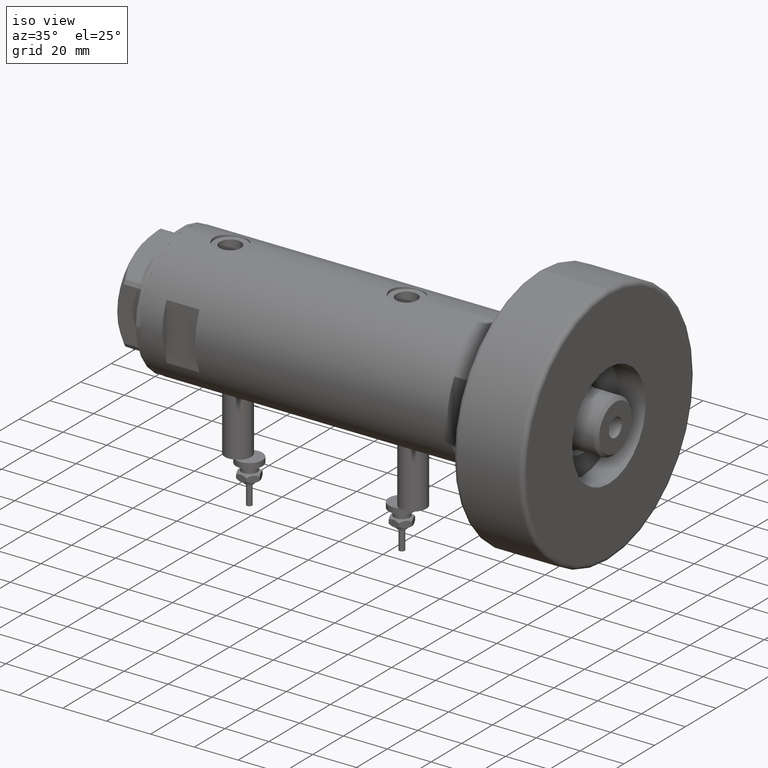
[diagram: clean part render]
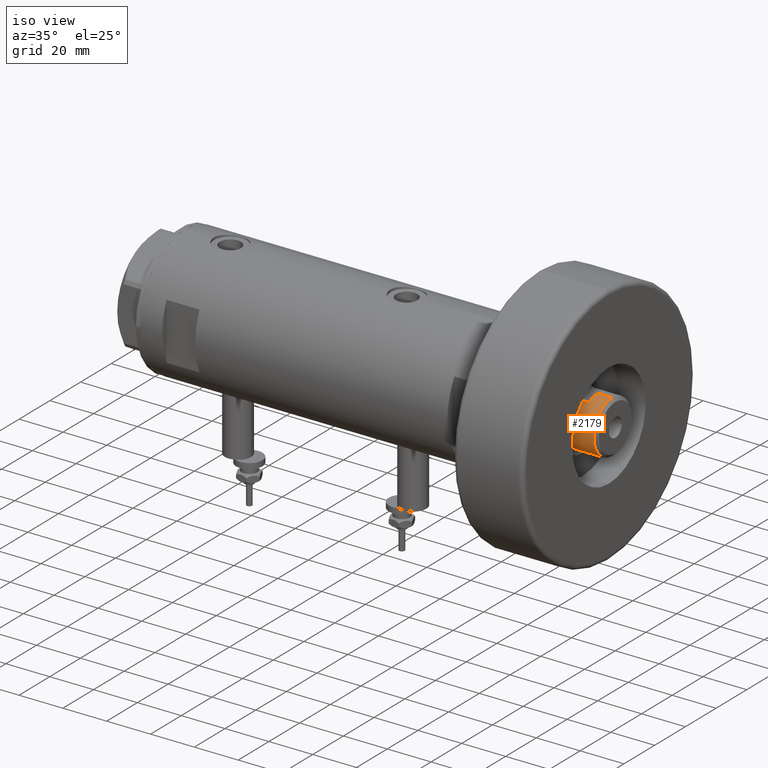
[diagram: same view with one face highlighted and labeled with its STEP entity id]
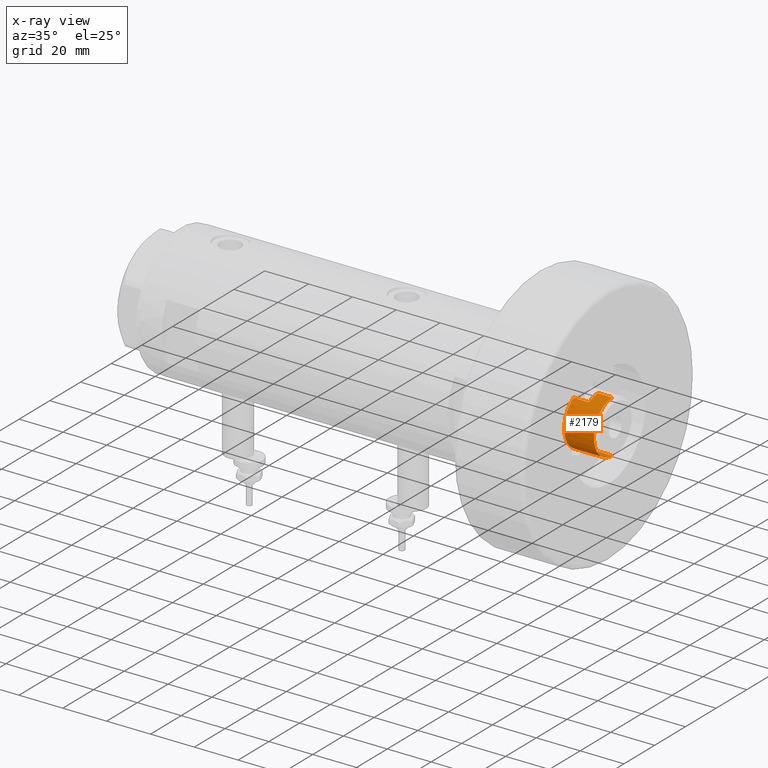
[diagram: x-ray of the same camera — body ghosted, the highlighted face saturated]
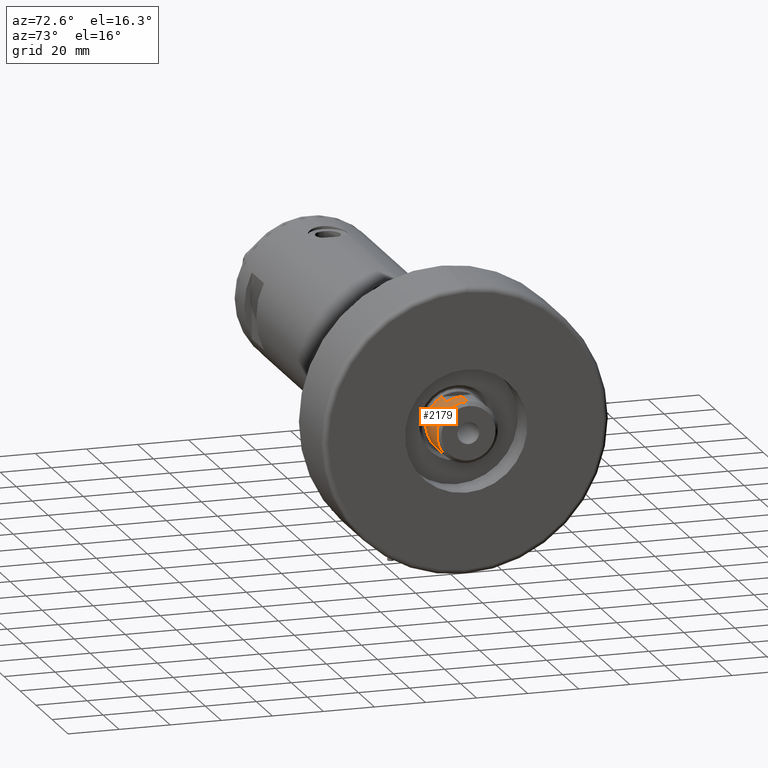
[diagram: same view with one face highlighted and labeled with its STEP entity id]
A machine part, iso view. The second image highlights one B-rep face of the part: STEP entity #2179.
The next image is the same camera in x-ray: the body ghosted, the highlighted face saturated — about 0% of this face is hidden behind the body in this view.
A second angle (auxiliary view) of the same face is appended — the face is thin or edge-on in the first view.
In plain terms, the highlighted cylindrical surface (edge-blend (fillet) strip) has radius 12 mm, axis along (-1, -0, 0).
Its self-contained STEP definition (entity closure, byte-faithful):
#78 = ORIENTED_EDGE ( 'NONE', *, *, #2128, .F. ) ;
#85 = CIRCLE ( 'NONE', #4461, 12.00000000000000000 ) ;
#97 = DIRECTION ( 'NONE',  ( -0.000000000000000000, -0.000000000000000000, -1.000000000000000000 ) ) ;
#134 = CARTESIAN_POINT ( 'NONE',  ( 12.00000000000000000, 1.469576158976823947E-15, 164.7000000000000171 ) ) ;
#192 = CARTESIAN_POINT ( 'NONE',  ( -12.00000000000000355, 0.000000000000000000, 164.7000000000000171 ) ) ;
#196 = DIRECTION ( 'NONE',  ( -0.000000000000000000, -0.000000000000000000, -1.000000000000000000 ) ) ;
#529 = DIRECTION ( 'NONE',  ( 1.000000000000000000, 0.000000000000000000, 0.000000000000000000 ) ) ;
#591 = DIRECTION ( 'NONE',  ( 0.000000000000000000, 0.000000000000000000, 1.000000000000000000 ) ) ;
#602 = ORIENTED_EDGE ( 'NONE', *, *, #6095, .T. ) ;
#643 = EDGE_CURVE ( 'NONE', #2408, #3460, #6068, .T. ) ;
#932 = CARTESIAN_POINT ( 'NONE',  ( 0.000000000000000000, 0.000000000000000000, 164.7000000000000171 ) ) ;
#965 = CARTESIAN_POINT ( 'NONE',  ( 12.00000000000000000, 1.469576158976823947E-15, 171.3000000000000114 ) ) ;
#1279 = VECTOR ( 'NONE', #196, 1000.000000000000000 ) ;
#1428 = CARTESIAN_POINT ( 'NONE',  ( 0.000000000000000000, 0.000000000000000000, 164.7000000000000171 ) ) ;
#1431 = FACE_OUTER_BOUND ( 'NONE', #5995, .T. ) ;
#1451 = DIRECTION ( 'NONE',  ( 0.000000000000000000, 0.000000000000000000, 1.000000000000000000 ) ) ;
#1472 = CARTESIAN_POINT ( 'NONE',  ( 12.00000000000000355, 1.469576158976824342E-15, 164.7000000000000171 ) ) ;
#1552 = DIRECTION ( 'NONE',  ( 1.000000000000000000, 0.000000000000000000, 0.000000000000000000 ) ) ;
#1653 = CARTESIAN_POINT ( 'NONE',  ( 0.000000000000000000, 0.000000000000000000, 171.3000000000000114 ) ) ;
#1675 = DIRECTION ( 'NONE',  ( 0.000000000000000000, 0.000000000000000000, -1.000000000000000000 ) ) ;
#1720 = LINE ( 'NONE', #3188, #4984 ) ;
#1741 = CARTESIAN_POINT ( 'NONE',  ( 10.48861764008966446, -5.829999999999997407, 164.7000000000000171 ) ) ;
#1833 = EDGE_CURVE ( 'NONE', #6192, #2408, #3862, .T. ) ;
#1953 = CARTESIAN_POINT ( 'NONE',  ( -10.48861764008966269, -5.829999999999964544, 157.7000000000000171 ) ) ;
#1962 = VERTEX_POINT ( 'NONE', #965 ) ;
#1963 = DIRECTION ( 'NONE',  ( -0.000000000000000000, -0.000000000000000000, -1.000000000000000000 ) ) ;
#2088 = CIRCLE ( 'NONE', #3331, 12.00000000000000000 ) ;
#2128 = EDGE_CURVE ( 'NONE', #1962, #4586, #4106, .T. ) ;
#2179 = ADVANCED_FACE ( 'NONE', ( #1431 ), #5299, .T. ) ;
#2317 = AXIS2_PLACEMENT_3D ( 'NONE', #1428, #3376, #4458 ) ;
#2408 = VERTEX_POINT ( 'NONE', #192 ) ;
#2417 = EDGE_CURVE ( 'NONE', #1962, #6192, #2088, .T. ) ;
#2419 = CIRCLE ( 'NONE', #2317, 12.00000000000000178 ) ;
#2421 = CARTESIAN_POINT ( 'NONE',  ( -12.00000000000000000, 0.000000000000000000, 164.7000000000000171 ) ) ;
#2438 = DIRECTION ( 'NONE',  ( 1.000000000000000000, 0.000000000000000000, 0.000000000000000000 ) ) ;
#2770 = ORIENTED_EDGE ( 'NONE', *, *, #2840, .T. ) ;
#2840 = EDGE_CURVE ( 'NONE', #4242, #4634, #85, .T. ) ;
#2863 = CARTESIAN_POINT ( 'NONE',  ( -12.00000000000000000, 0.000000000000000000, 171.3000000000000114 ) ) ;
#3029 = VECTOR ( 'NONE', #3217, 1000.000000000000000 ) ;
#3064 = ORIENTED_EDGE ( 'NONE', *, *, #5322, .T. ) ;
#3114 = AXIS2_PLACEMENT_3D ( 'NONE', #3420, #591, #529 ) ;
#3188 = CARTESIAN_POINT ( 'NONE',  ( -10.48861764008966091, -5.830000000000000959, 164.7000000000000171 ) ) ;
#3217 = DIRECTION ( 'NONE',  ( -0.000000000000000000, -0.000000000000000000, -1.000000000000000000 ) ) ;
#3331 = AXIS2_PLACEMENT_3D ( 'NONE', #1653, #1675, #1552 ) ;
#3376 = DIRECTION ( 'NONE',  ( 0.000000000000000000, 0.000000000000000000, 1.000000000000000000 ) ) ;
#3420 = CARTESIAN_POINT ( 'NONE',  ( 0.000000000000000000, 0.000000000000000000, 164.7000000000000171 ) ) ;
#3447 = EDGE_CURVE ( 'NONE', #5131, #4634, #5301, .T. ) ;
#3460 = VERTEX_POINT ( 'NONE', #5684 ) ;
#3608 = DIRECTION ( 'NONE',  ( -0.000000000000000000, -0.000000000000000000, -1.000000000000000000 ) ) ;
#3834 = ORIENTED_EDGE ( 'NONE', *, *, #643, .T. ) ;
#3862 = LINE ( 'NONE', #2421, #4445 ) ;
#4106 = LINE ( 'NONE', #134, #1279 ) ;
#4242 = VERTEX_POINT ( 'NONE', #1953 ) ;
#4322 = DIRECTION ( 'NONE',  ( -1.000000000000000000, 0.000000000000000000, 0.000000000000000000 ) ) ;
#4445 = VECTOR ( 'NONE', #1963, 1000.000000000000000 ) ;
#4458 = DIRECTION ( 'NONE',  ( 1.000000000000000000, 0.000000000000000000, 0.000000000000000000 ) ) ;
#4461 = AXIS2_PLACEMENT_3D ( 'NONE', #5323, #1451, #2438 ) ;
#4586 = VERTEX_POINT ( 'NONE', #1472 ) ;
#4634 = VERTEX_POINT ( 'NONE', #5925 ) ;
#4781 = CARTESIAN_POINT ( 'NONE',  ( 10.48861764008966446, -5.829999999999997407, 164.7000000000000171 ) ) ;
#4874 = ORIENTED_EDGE ( 'NONE', *, *, #3447, .F. ) ;
#4984 = VECTOR ( 'NONE', #3608, 1000.000000000000000 ) ;
#5131 = VERTEX_POINT ( 'NONE', #1741 ) ;
#5159 = AXIS2_PLACEMENT_3D ( 'NONE', #932, #97, #4322 ) ;
#5299 = CYLINDRICAL_SURFACE ( 'NONE', #5159, 12.00000000000000000 ) ;
#5301 = LINE ( 'NONE', #4781, #3029 ) ;
#5322 = EDGE_CURVE ( 'NONE', #5131, #4586, #2419, .T. ) ;
#5323 = CARTESIAN_POINT ( 'NONE',  ( 0.000000000000000000, 0.000000000000000000, 157.7000000000000171 ) ) ;
#5470 = ORIENTED_EDGE ( 'NONE', *, *, #2417, .T. ) ;
#5684 = CARTESIAN_POINT ( 'NONE',  ( -10.48861764008966091, -5.830000000000003624, 164.7000000000000171 ) ) ;
#5925 = CARTESIAN_POINT ( 'NONE',  ( 10.48861764008966091, -5.829999999999960103, 157.7000000000000171 ) ) ;
#5995 = EDGE_LOOP ( 'NONE', ( #78, #5470, #6022, #3834, #602, #2770, #4874, #3064 ) ) ;
#6022 = ORIENTED_EDGE ( 'NONE', *, *, #1833, .T. ) ;
#6068 = CIRCLE ( 'NONE', #3114, 12.00000000000000178 ) ;
#6095 = EDGE_CURVE ( 'NONE', #3460, #4242, #1720, .T. ) ;
#6192 = VERTEX_POINT ( 'NONE', #2863 ) ;